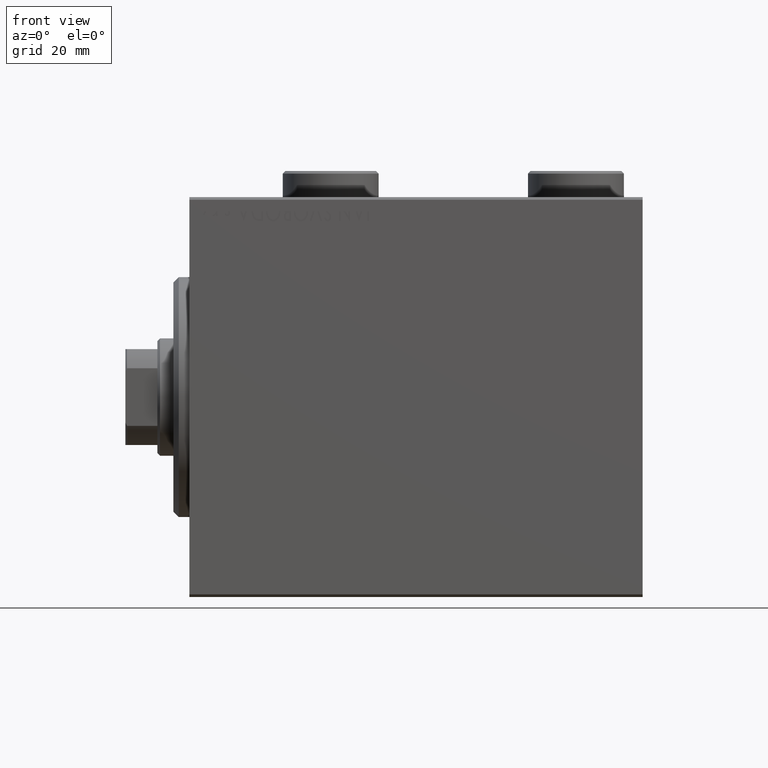
[diagram: clean part render]
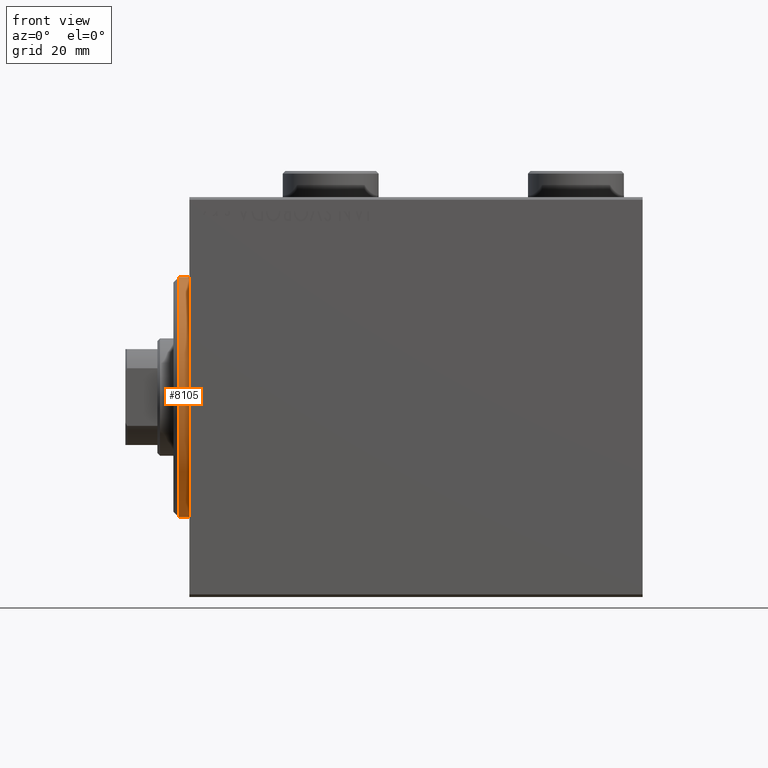
[diagram: same view with one face highlighted and labeled with its STEP entity id]
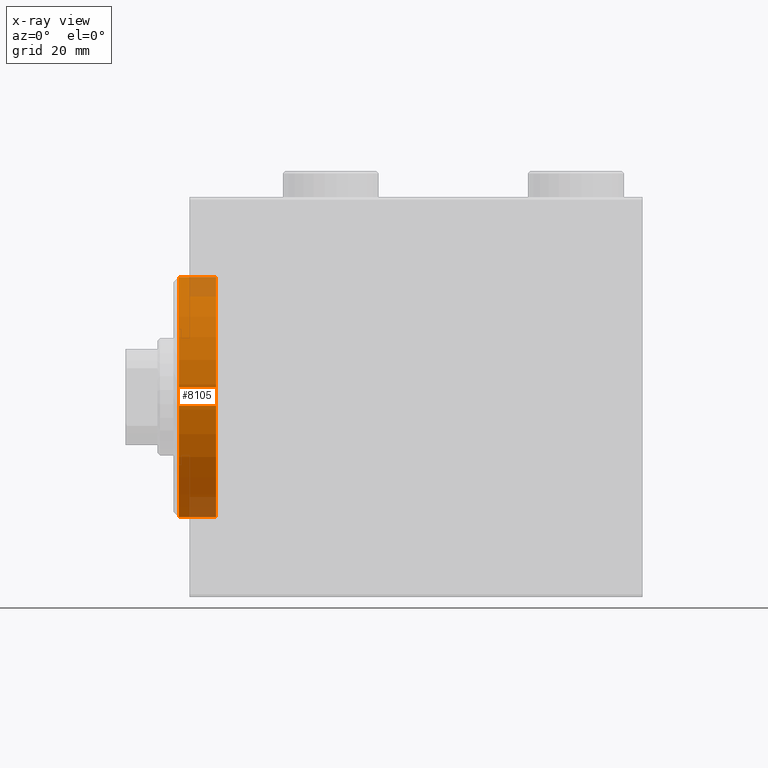
[diagram: x-ray of the same camera — body ghosted, the highlighted face saturated]
A machine part, front view. The second image highlights one B-rep face of the part: STEP entity #8105.
The next image is the same camera in x-ray: the body ghosted, the highlighted face saturated — about 12% of this face is hidden behind the body in this view.
In plain terms, the highlighted cylindrical surface (partial cylindrical patch) has radius 22.5 mm, axis along (1, -0, -0).
Its self-contained STEP definition (entity closure, byte-faithful):
#5225 = VERTEX_POINT ( 'NONE', #37551 ) ;
#5441 = CARTESIAN_POINT ( 'NONE',  ( 3.000000000000000000, 0.000000000000000000, 22.50000000000000355 ) ) ;
#7476 = AXIS2_PLACEMENT_3D ( 'NONE', #15613, #16057, #30113 ) ;
#7496 = DIRECTION ( 'NONE',  ( 0.000000000000000000, 0.000000000000000000, 1.000000000000000000 ) ) ;
#8105 = ADVANCED_FACE ( 'NONE', ( #8963 ), #8303, .T. ) ;
#8303 = CYLINDRICAL_SURFACE ( 'NONE', #41879, 22.50000000000000355 ) ;
#8844 = ORIENTED_EDGE ( 'NONE', *, *, #31438, .F. ) ;
#8963 = FACE_OUTER_BOUND ( 'NONE', #19779, .T. ) ;
#10128 = ORIENTED_EDGE ( 'NONE', *, *, #13487, .T. ) ;
#11549 = VECTOR ( 'NONE', #13652, 1000.000000000000000 ) ;
#12129 = LINE ( 'NONE', #5441, #23314 ) ;
#13487 = EDGE_CURVE ( 'NONE', #5225, #36893, #28826, .T. ) ;
#13652 = DIRECTION ( 'NONE',  ( -1.000000000000000000, -0.000000000000000000, -0.000000000000000000 ) ) ;
#15613 = CARTESIAN_POINT ( 'NONE',  ( 1.999999999999999112, 0.000000000000000000, 0.000000000000000000 ) ) ;
#16057 = DIRECTION ( 'NONE',  ( -1.000000000000000000, 0.000000000000000000, 0.000000000000000000 ) ) ;
#18863 = CARTESIAN_POINT ( 'NONE',  ( -5.000000000000000000, 2.755455298081545172E-15, -22.50000000000000355 ) ) ;
#19114 = DIRECTION ( 'NONE',  ( 0.000000000000000000, 0.000000000000000000, 1.000000000000000000 ) ) ;
#19779 = EDGE_LOOP ( 'NONE', ( #10128, #20138, #24574, #8844 ) ) ;
#20138 = ORIENTED_EDGE ( 'NONE', *, *, #35947, .T. ) ;
#23314 = VECTOR ( 'NONE', #40236, 1000.000000000000000 ) ;
#24574 = ORIENTED_EDGE ( 'NONE', *, *, #31553, .F. ) ;
#24822 = CIRCLE ( 'NONE', #29251, 22.50000000000000355 ) ;
#28826 = CIRCLE ( 'NONE', #7476, 22.50000000000000355 ) ;
#29251 = AXIS2_PLACEMENT_3D ( 'NONE', #39066, #38832, #7496 ) ;
#30113 = DIRECTION ( 'NONE',  ( 0.000000000000000000, 0.000000000000000000, -1.000000000000000000 ) ) ;
#30255 = CARTESIAN_POINT ( 'NONE',  ( 3.000000000000000000, 2.755455298081545172E-15, -22.50000000000000355 ) ) ;
#31438 = EDGE_CURVE ( 'NONE', #5225, #43513, #12129, .T. ) ;
#31553 = EDGE_CURVE ( 'NONE', #43513, #42137, #24822, .T. ) ;
#35947 = EDGE_CURVE ( 'NONE', #36893, #42137, #37854, .T. ) ;
#36893 = VERTEX_POINT ( 'NONE', #38782 ) ;
#37551 = CARTESIAN_POINT ( 'NONE',  ( 1.999999999999999112, 0.000000000000000000, 22.50000000000000355 ) ) ;
#37854 = LINE ( 'NONE', #30255, #11549 ) ;
#38782 = CARTESIAN_POINT ( 'NONE',  ( 1.999999999999999112, 2.755455298081545172E-15, -22.50000000000000355 ) ) ;
#38832 = DIRECTION ( 'NONE',  ( -1.000000000000000000, 0.000000000000000000, 0.000000000000000000 ) ) ;
#39066 = CARTESIAN_POINT ( 'NONE',  ( -5.000000000000000000, 0.000000000000000000, 0.000000000000000000 ) ) ;
#39577 = CARTESIAN_POINT ( 'NONE',  ( -5.000000000000000000, 0.000000000000000000, 22.50000000000000355 ) ) ;
#40236 = DIRECTION ( 'NONE',  ( -1.000000000000000000, -0.000000000000000000, -0.000000000000000000 ) ) ;
#41879 = AXIS2_PLACEMENT_3D ( 'NONE', #43997, #43329, #19114 ) ;
#42137 = VERTEX_POINT ( 'NONE', #18863 ) ;
#43329 = DIRECTION ( 'NONE',  ( -1.000000000000000000, -0.000000000000000000, -0.000000000000000000 ) ) ;
#43513 = VERTEX_POINT ( 'NONE', #39577 ) ;
#43997 = CARTESIAN_POINT ( 'NONE',  ( 3.000000000000000000, 0.000000000000000000, 0.000000000000000000 ) ) ;